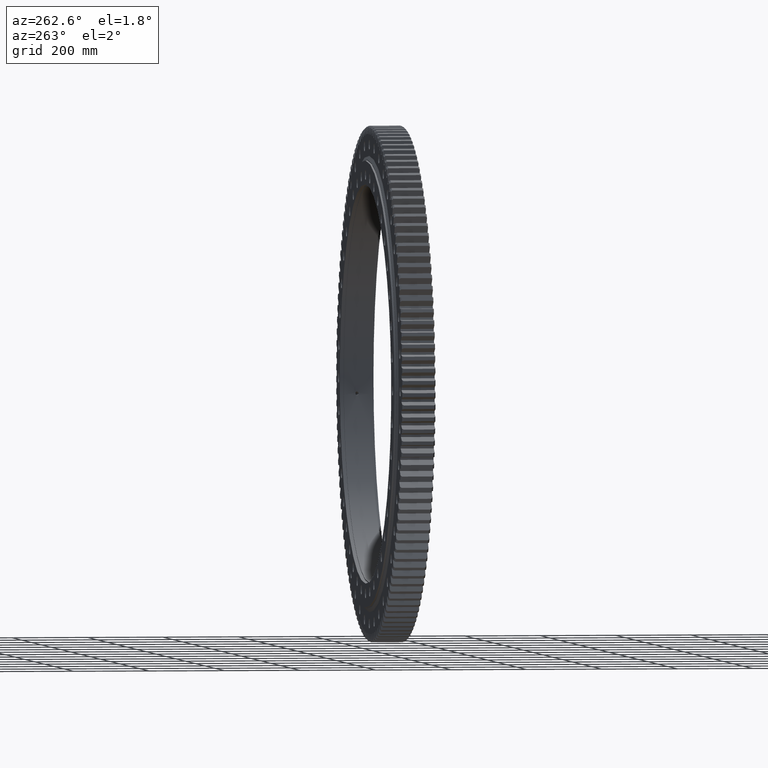
[diagram: clean part render]
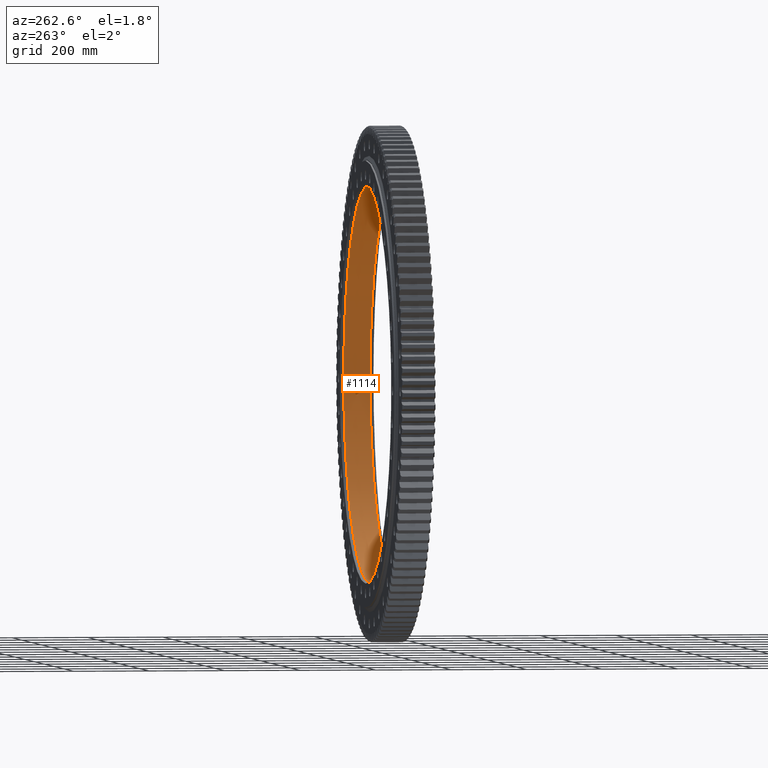
[diagram: same view with one face highlighted and labeled with its STEP entity id]
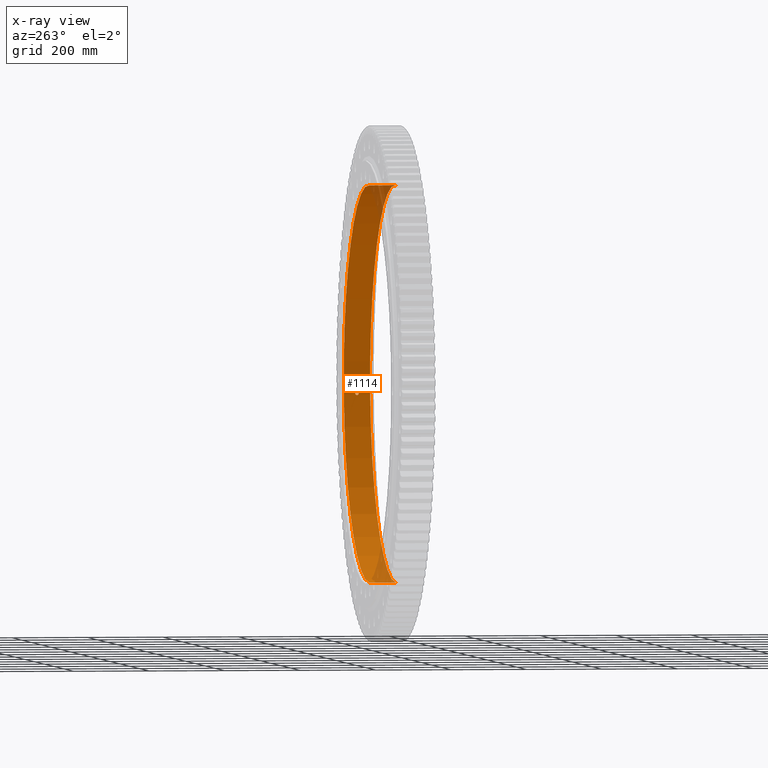
[diagram: x-ray of the same camera — body ghosted, the highlighted face saturated]
A machine part, auxiliary view. The second image highlights one B-rep face of the part: STEP entity #1114.
The next image is the same camera in x-ray: the body ghosted, the highlighted face saturated — about 7% of this face is hidden behind the body in this view.
In plain terms, the highlighted cylindrical surface (partial cylindrical patch) has radius 522.5 mm, axis along (-0, 1, -0).
Its self-contained STEP definition (entity closure, byte-faithful):
#107 = VECTOR ( 'NONE', #29542, 1000.000000000000000 ) ;
#181 = DIRECTION ( 'NONE',  ( 0.0000000000000000000, 2.656035944079321900E-017, 1.000000000000000000 ) ) ;
#217 = CARTESIAN_POINT ( 'NONE',  ( 42.44189346128200000, 4.269501406712616500, 520.7734718713392100 ) ) ;
#580 = CARTESIAN_POINT ( 'NONE',  ( 520.5169223319886700, 7.982458896630488700E-009, -45.47948511179952600 ) ) ;
#929 = CARTESIAN_POINT ( 'NONE',  ( 45.25030807638969300, 1.450671737367961600, 520.5369077978168700 ) ) ;
#1114 = ADVANCED_FACE ( 'NONE', ( #35366, #6643, #34499 ), #33600, .F. ) ;
#1314 = CARTESIAN_POINT ( 'NONE',  ( 521.0014333689829300, -4.268830166289387900, -39.54529593804283400 ) ) ;
#1425 = CARTESIAN_POINT ( 'NONE',  ( 520.5967422455602200, -2.750358737038866700, -44.55680646927094600 ) ) ;
#1562 = VECTOR ( 'NONE', #14069, 1000.000000000000000 ) ;
#1666 = CARTESIAN_POINT ( 'NONE',  ( 45.47948511179770700, 0.2973269559830143400, 520.5169223319888900 ) ) ;
#1672 = CARTESIAN_POINT ( 'NONE',  ( 36.65036934035285300, -1.165413915667370600, 521.2130118627661700 ) ) ;
#1786 = CARTESIAN_POINT ( 'NONE',  ( 40.69532020410309800, -4.499748642551631800, 520.9128803760140700 ) ) ;
#1895 = CARTESIAN_POINT ( 'NONE',  ( 45.24845448250045600, -1.455748788596478600, 520.5370688136986200 ) ) ;
#2126 = CARTESIAN_POINT ( 'NONE',  ( 521.2230541935392700, 0.2936963170855722000, -36.50722910820135100 ) ) ;
#2321 = EDGE_CURVE ( 'NONE', #15021, #34153, #30546, .T. ) ;
#2519 = CARTESIAN_POINT ( 'NONE',  ( 0.0000000000000000000, 34.99999999999993600, 522.5000000000000000 ) ) ;
#2740 = CARTESIAN_POINT ( 'NONE',  ( 0.0000000000000000000, -35.00000000000004300, 522.5000000000000000 ) ) ;
#2882 = CARTESIAN_POINT ( 'NONE',  ( 6.398779525544920300E-014, 31.02910628019322900, -522.5000000000000000 ) ) ;
#2951 = CARTESIAN_POINT ( 'NONE',  ( 521.2129448723102300, 1.168562155700870300, -36.65132200568330500 ) ) ;
#3214 = CARTESIAN_POINT ( 'NONE',  ( 0.0000000000000000000, 34.99999999999993600, -1.800656362882646300E-015 ) ) ;
#3346 = CARTESIAN_POINT ( 'NONE',  ( 520.5683338920409800, 2.254170811191635900, -44.88748624617805700 ) ) ;
#3719 = CARTESIAN_POINT ( 'NONE',  ( 42.98165462433679100, 4.045121518116488300, 520.7292009204608100 ) ) ;
#3977 = CARTESIAN_POINT ( 'NONE',  ( 521.2210677606560700, -0.5854536415347041400, -36.53562412607830400 ) ) ;
#4010 = CARTESIAN_POINT ( 'NONE',  ( 40.40665138700662600, 4.470844854348500900, 520.9353470503792800 ) ) ;
#4088 = CARTESIAN_POINT ( 'NONE',  ( 520.9355418010818500, -4.470445865567148400, -40.40413346531175900 ) ) ;
#4204 = CARTESIAN_POINT ( 'NONE',  ( 520.5564947746986500, -1.997037332466410800, -45.02441993064842100 ) ) ;
#4458 = CARTESIAN_POINT ( 'NONE',  ( 36.96013392669093600, -1.991446762146140000, 521.1911463723289400 ) ) ;
#4542 = ORIENTED_EDGE ( 'NONE', *, *, #18994, .T. ) ;
#4571 = CARTESIAN_POINT ( 'NONE',  ( 41.57958242286080300, -4.471227370604653500, 520.8430387172171500 ) ) ;
#4701 = CARTESIAN_POINT ( 'NONE',  ( 45.45042653223400500, -0.5914362353935031000, 520.5194637264954700 ) ) ;
#5035 = CARTESIAN_POINT ( 'NONE',  ( 521.0419248841641300, 4.045565010946058100, -39.00816230308646500 ) ) ;
#5207 = CARTESIAN_POINT ( 'NONE',  ( 6.398779525544920300E-014, 34.99999999999993600, -522.5000000000000000 ) ) ;
#5698 = AXIS2_PLACEMENT_3D ( 'NONE', #9954, #34322, #181 ) ;
#5816 = CARTESIAN_POINT ( 'NONE',  ( 39.00816230308462500, 4.045565010946058100, 521.0419248841642500 ) ) ;
#6250 = CARTESIAN_POINT ( 'NONE',  ( 520.6475919262203400, 3.390113386120980500, -43.95882320256661300 ) ) ;
#6452 = B_SPLINE_CURVE_WITH_KNOTS ( 'NONE', 3,
 ( #580, #25637, #17427, #8647, #17697, #11367, #3346, #6634, #20511, #6250, #20141, #14431, #15643, #17353, #22305, #26229, #23302, #6986, #26943, #29616, #11594, #5035, #30076, #8169, #9553, #14258, #10988, #7679, #27761, #33575, #2951, #10869, #2126, #28375 ),
 .UNSPECIFIED., .F., .F.,
 ( 4, 2, 2, 2, 2, 2, 2, 2, 2, 2, 2, 2, 2, 2, 2, 2, 4 ),
 ( 3.728237875450148900E-018, 0.0008793201707925477000, 0.001758640341585091700, 0.002637960512377635900, 0.003517280683170179900, 0.004396600853962724000, 0.005275921024755267500, 0.006155241195547811100, 0.007034561366340355600, 0.007913881537132900000, 0.008793201707925444400, 0.009672521878717987200, 0.01055184204951053200, 0.01143116222030307600, 0.01231048239109561900, 0.01318980256188816300, 0.01406912273268070800 ),
 .UNSPECIFIED. ) ;
#6510 = CARTESIAN_POINT ( 'NONE',  ( 521.2230541935392700, -0.2936300045140719000, -36.50722910820135100 ) ) ;
#6634 = CARTESIAN_POINT ( 'NONE',  ( 520.5962930938819700, 2.743369090361458700, -44.56204988042131300 ) ) ;
#6643 = FACE_BOUND ( 'NONE', #20238, .T. ) ;
#6735 = CARTESIAN_POINT ( 'NONE',  ( 521.2069516081426200, -1.449885485798991300, -36.73657784999321100 ) ) ;
#6859 = CARTESIAN_POINT ( 'NONE',  ( 520.8663277619912200, -4.500248152740598900, -41.28688207999822200 ) ) ;
#6984 = CARTESIAN_POINT ( 'NONE',  ( 520.5295802677922000, -1.173646548506634100, -45.33441801012203600 ) ) ;
#6986 = CARTESIAN_POINT ( 'NONE',  ( 520.9122109962196400, 4.500103750323881400, -40.70386445916337000 ) ) ;
#7064 = EDGE_CURVE ( 'NONE', #21192, #29593, #23708, .T. ) ;
#7221 = CARTESIAN_POINT ( 'NONE',  ( 37.42718471580959500, -2.745437740084375000, 521.1578291912397800 ) ) ;
#7350 = CARTESIAN_POINT ( 'NONE',  ( 42.43695594754823500, -4.271335784517484400, 520.7738753571800300 ) ) ;
#7426 = CARTESIAN_POINT ( 'NONE',  ( 38.03226902857244300, 3.392750171269697000, 521.1140380510220200 ) ) ;
#7430 = EDGE_LOOP ( 'NONE', ( #14682, #4542 ) ) ;
#7467 = CARTESIAN_POINT ( 'NONE',  ( 45.47948511179769300, 7.982460993226838000E-009, 520.5169223319887800 ) ) ;
#7679 = CARTESIAN_POINT ( 'NONE',  ( 521.1810810616998400, 2.257525261012216500, -37.10198511371228800 ) ) ;
#8169 = CARTESIAN_POINT ( 'NONE',  ( 521.0974586145877100, 3.578755136296426300, -38.25896087370706800 ) ) ;
#8541 = VERTEX_POINT ( 'NONE', #5207 ) ;
#8647 = CARTESIAN_POINT ( 'NONE',  ( 520.5293971237024400, 1.164867514309323200, -45.33651947220699400 ) ) ;
#8792 = DIRECTION ( 'NONE',  ( 0.0000000000000000000, 0.0000000000000000000, 1.000000000000000000 ) ) ;
#9066 = CARTESIAN_POINT ( 'NONE',  ( 43.24273119766579800, 3.905344831416399200, 520.7075731305378700 ) ) ;
#9150 = CARTESIAN_POINT ( 'NONE',  ( 36.96150652220680400, 1.994554134339261400, 521.1910492257030700 ) ) ;
#9548 = CARTESIAN_POINT ( 'NONE',  ( 521.1813023166428100, -2.252554415507580700, -37.09888406145111600 ) ) ;
#9553 = CARTESIAN_POINT ( 'NONE',  ( 521.1140380510217900, 3.392750171269697900, -38.03226902857427700 ) ) ;
#9669 = CARTESIAN_POINT ( 'NONE',  ( 520.7969663623948700, -4.357378976210391400, -42.15272805371748200 ) ) ;
#9778 = CARTESIAN_POINT ( 'NONE',  ( 520.5169223319887800, -0.2972598238607369600, -45.47948511179951200 ) ) ;
#9954 = CARTESIAN_POINT ( 'NONE',  ( 0.0000000000000000000, 31.02910628019324300, -1.692367527159823000E-015 ) ) ;
#10033 = ORIENTED_EDGE ( 'NONE', *, *, #31015, .T. ) ;
#10052 = CARTESIAN_POINT ( 'NONE',  ( 38.02645568771907100, -3.387315542913415600, 521.1144611673427100 ) ) ;
#10149 = CARTESIAN_POINT ( 'NONE',  ( 44.56204988041948700, 2.743369090361455600, 520.5962930938823100 ) ) ;
#10152 = CARTESIAN_POINT ( 'NONE',  ( 43.23866525860639600, -3.907536526290679800, 520.7079100526788100 ) ) ;
#10754 = EDGE_CURVE ( 'NONE', #30493, #28166, #6452, .T. ) ;
#10822 = CARTESIAN_POINT ( 'NONE',  ( 43.95882320256480800, 3.390113386120976500, 520.6475919262203400 ) ) ;
#10869 = CARTESIAN_POINT ( 'NONE',  ( 521.2210002377947800, 0.5919615105904813000, -36.53658739322546000 ) ) ;
#10988 = CARTESIAN_POINT ( 'NONE',  ( 521.1578365274966700, 2.744955736329135500, -37.42707552025913000 ) ) ;
#11199 = AXIS2_PLACEMENT_3D ( 'NONE', #25197, #17756, #11560 ) ;
#11208 = AXIS2_PLACEMENT_3D ( 'NONE', #3214, #14900, #8792 ) ;
#11252 = B_SPLINE_CURVE_WITH_KNOTS ( 'NONE', 3,
 ( #34487, #6510, #3977, #23433, #6735, #26228, #9548, #29006, #12361, #31797, #15150, #34584, #17944, #1314, #20732, #4088, #23568, #6859, #26333, #9669, #29144, #12473, #31902, #15282, #34719, #18055, #1425, #20866, #4204, #23674, #6984, #26463, #9778, #29257 ),
 .UNSPECIFIED., .F., .F.,
 ( 4, 2, 2, 2, 2, 2, 2, 2, 2, 2, 2, 2, 2, 2, 2, 2, 4 ),
 ( 0.01406912273268070800, 0.01494824441291817800, 0.01582736609315564500, 0.01670648777339311600, 0.01758560945363058700, 0.01846473113386805400, 0.01934385281410552800, 0.02022297449434299500, 0.02110209617458046500, 0.02198121785481793600, 0.02286033953505540300, 0.02373946121529287400, 0.02461858289553034400, 0.02549770457576781100, 0.02637682625600527900, 0.02725594793624274900, 0.02813506961648021600 ),
 .UNSPECIFIED. ) ;
#11367 = CARTESIAN_POINT ( 'NONE',  ( 520.5564251717156600, 1.995681479349314100, -45.02522596462204500 ) ) ;
#11560 = DIRECTION ( 'NONE',  ( 0.0000000000000000000, 2.656035944079321900E-017, 1.000000000000000000 ) ) ;
#11594 = CARTESIAN_POINT ( 'NONE',  ( 521.0009654584851000, 4.270948587163580600, -39.55146273635573800 ) ) ;
#11995 = CARTESIAN_POINT ( 'NONE',  ( 44.88748624617623800, 2.254170811191633600, 520.5683338920413200 ) ) ;
#12361 = CARTESIAN_POINT ( 'NONE',  ( 521.1444696501979500, -2.972154230457295700, -37.61295950751544100 ) ) ;
#12473 = CARTESIAN_POINT ( 'NONE',  ( 520.7292588011807800, -4.045623300547013000, -42.98096686909710200 ) ) ;
#12572 = CARTESIAN_POINT ( 'NONE',  ( 37.61317475582430300, 2.972766753993241200, 521.1444552387481500 ) ) ;
#12598 = EDGE_CURVE ( 'NONE', #8541, #34153, #14708, .T. ) ;
#12730 = CARTESIAN_POINT ( 'NONE',  ( 36.50722910819952500, -0.2936300045140723400, 521.2230541935393800 ) ) ;
#12840 = CARTESIAN_POINT ( 'NONE',  ( 38.74513019763642800, -3.904565419333112100, 521.0615364433856500 ) ) ;
#12963 = CARTESIAN_POINT ( 'NONE',  ( 43.95691874128547000, -3.391801968467732300, 520.6477528050151000 ) ) ;
#13089 = CARTESIAN_POINT ( 'NONE',  ( 36.65132200568147900, 1.168562155700870100, 521.2129448723103500 ) ) ;
#13602 = ORIENTED_EDGE ( 'NONE', *, *, #10754, .T. ) ;
#14069 = DIRECTION ( 'NONE',  ( -0.0000000000000000000, 1.000000000000000000, -2.727064569436389700E-017 ) ) ;
#14258 = CARTESIAN_POINT ( 'NONE',  ( 521.1444552387477000, 2.972766753993242500, -37.61317475582611500 ) ) ;
#14431 = CARTESIAN_POINT ( 'NONE',  ( 520.7075731305378700, 3.905344831416399200, -43.24273119766761700 ) ) ;
#14542 = CARTESIAN_POINT ( 'NONE',  ( 45.45041687211387700, 0.5896845411252149600, 520.5194644525504400 ) ) ;
#14682 = ORIENTED_EDGE ( 'NONE', *, *, #7064, .T. ) ;
#14708 = CIRCLE ( 'NONE', #11208, 522.5000000000000000 ) ;
#14900 = DIRECTION ( 'NONE',  ( 0.0000000000000000000, -1.000000000000000000, 0.0000000000000000000 ) ) ;
#14920 = CARTESIAN_POINT ( 'NONE',  ( 38.25896087370523400, 3.578755136296423600, 521.0974586145879400 ) ) ;
#15021 = VERTEX_POINT ( 'NONE', #2740 ) ;
#15150 = CARTESIAN_POINT ( 'NONE',  ( 521.0975975296682900, -3.577391925666828100, -38.25707416388863200 ) ) ;
#15161 = CARTESIAN_POINT ( 'NONE',  ( 36.50722910819951700, 7.982461642902911800E-009, 521.2230541935395000 ) ) ;
#15282 = CARTESIAN_POINT ( 'NONE',  ( 520.6672208942344500, -3.581692240166549200, -43.72590594886288100 ) ) ;
#15463 = CARTESIAN_POINT ( 'NONE',  ( 39.83118006561283400, 4.355941762590147100, 520.9796640727839800 ) ) ;
#15643 = CARTESIAN_POINT ( 'NONE',  ( 520.7292009204607000, 4.045121518116488300, -42.98165462433862400 ) ) ;
#15657 = CARTESIAN_POINT ( 'NONE',  ( 39.54529593804102200, -4.268830166289387100, 521.0014333689830400 ) ) ;
#15761 = CARTESIAN_POINT ( 'NONE',  ( 44.55680646926910500, -2.750358737038864900, 520.5967422455603400 ) ) ;
#15829 = CARTESIAN_POINT ( 'NONE',  ( 45.47948511179769300, 7.982460993226838000E-009, 520.5169223319887800 ) ) ;
#16257 = EDGE_CURVE ( 'NONE', #15021, #26069, #23874, .T. ) ;
#17217 = LINE ( 'NONE', #2882, #1562 ) ;
#17228 = ORIENTED_EDGE ( 'NONE', *, *, #12598, .F. ) ;
#17284 = EDGE_LOOP ( 'NONE', ( #26492, #25569, #29918, #17228 ) ) ;
#17353 = CARTESIAN_POINT ( 'NONE',  ( 520.7734718713393200, 4.269501406712617400, -42.44189346128382600 ) ) ;
#17427 = CARTESIAN_POINT ( 'NONE',  ( 520.5194644525503200, 0.5896845411252184000, -45.45041687211571000 ) ) ;
#17697 = CARTESIAN_POINT ( 'NONE',  ( 520.5369077978167500, 1.450671737367963600, -45.25030807639151900 ) ) ;
#17756 = DIRECTION ( 'NONE',  ( -0.0000000000000000000, 1.000000000000000000, -2.727064569436389700E-017 ) ) ;
#17833 = EDGE_CURVE ( 'NONE', #26069, #8541, #17217, .T. ) ;
#17944 = CARTESIAN_POINT ( 'NONE',  ( 521.0423288097167600, -4.042876200229306600, -39.00276390089474200 ) ) ;
#18055 = CARTESIAN_POINT ( 'NONE',  ( 520.6126141455597500, -2.976678123065436200, -44.37115277594865900 ) ) ;
#18327 = CARTESIAN_POINT ( 'NONE',  ( 36.53562412607647800, -0.5854536415347065800, 521.2210677606563000 ) ) ;
#18425 = CARTESIAN_POINT ( 'NONE',  ( 40.40413346530994700, -4.470445865567147500, 520.9355418010817400 ) ) ;
#18545 = CARTESIAN_POINT ( 'NONE',  ( 45.02441993064658700, -1.997037332466408400, 520.5564947746986500 ) ) ;
#18994 = EDGE_CURVE ( 'NONE', #29593, #21192, #31745, .T. ) ;
#19412 = CARTESIAN_POINT ( 'NONE',  ( 36.53658739322362000, 0.5919615105904805200, 521.2210002377949000 ) ) ;
#20141 = CARTESIAN_POINT ( 'NONE',  ( 520.6666234639390000, 3.576389863555925700, -43.73302788041178200 ) ) ;
#20238 = EDGE_LOOP ( 'NONE', ( #13602, #10033 ) ) ;
#20345 = CARTESIAN_POINT ( 'NONE',  ( 45.02522596462021900, 1.995681479349311200, 520.5564251717157700 ) ) ;
#20511 = CARTESIAN_POINT ( 'NONE',  ( 520.6124886286864900, 2.974981557475649300, -44.37262444089137100 ) ) ;
#20732 = CARTESIAN_POINT ( 'NONE',  ( 520.9797051835530500, -4.355728621484209000, -39.83063518860094400 ) ) ;
#20866 = CARTESIAN_POINT ( 'NONE',  ( 520.5685940554086500, -2.259570265699943500, -44.88447306814720900 ) ) ;
#20991 = CARTESIAN_POINT ( 'NONE',  ( 43.73302788040996300, 3.576389863555923000, 520.6666234639392300 ) ) ;
#21102 = CARTESIAN_POINT ( 'NONE',  ( 36.73657784999139200, -1.449885485798995800, 521.2069516081426200 ) ) ;
#21192 = VERTEX_POINT ( 'NONE', #15829 ) ;
#21232 = CARTESIAN_POINT ( 'NONE',  ( 41.28688207999639600, -4.500248152740597100, 520.8663277619913300 ) ) ;
#21362 = CARTESIAN_POINT ( 'NONE',  ( 45.33441801012021000, -1.173646548506633900, 520.5295802677923100 ) ) ;
#22305 = CARTESIAN_POINT ( 'NONE',  ( 520.7964416032567700, 4.355842742466290200, -42.15923132697451300 ) ) ;
#22634 = CARTESIAN_POINT ( 'NONE',  ( 40.70386445916154400, 4.500103750323881400, 520.9122109962199800 ) ) ;
#23302 = CARTESIAN_POINT ( 'NONE',  ( 520.8661524830341700, 4.499895700381830300, -41.28907051994146100 ) ) ;
#23433 = CARTESIAN_POINT ( 'NONE',  ( 521.2130118627662800, -1.165413915667368000, -36.65036934035469300 ) ) ;
#23566 = CARTESIAN_POINT ( 'NONE',  ( 38.74533045590932500, 3.904600838382395800, 521.0615211561685100 ) ) ;
#23568 = CARTESIAN_POINT ( 'NONE',  ( 520.9128803760136200, -4.499748642551631800, -40.69532020410492400 ) ) ;
#23674 = CARTESIAN_POINT ( 'NONE',  ( 520.5370688136984000, -1.455748788596481000, -45.24845448250231100 ) ) ;
#23708 = B_SPLINE_CURVE_WITH_KNOTS ( 'NONE', 3,
 ( #24613, #1666, #14542, #30803, #929, #20345, #11995, #10149, #27489, #10822, #20991, #9066, #3719, #217, #31828, #32456, #28967, #22634, #4010, #15463, #32103, #5816, #23566, #14920, #7426, #12572, #32498, #25302, #9150, #35295, #13089, #19412, #36093, #15161 ),
 .UNSPECIFIED., .F., .F.,
 ( 4, 2, 2, 2, 2, 2, 2, 2, 2, 2, 2, 2, 2, 2, 2, 2, 4 ),
 ( 5.974346402326065600E-019, 0.0008793201707925457500, 0.001758640341585090800, 0.002637960512377635100, 0.003517280683170179900, 0.004396600853962724800, 0.005275921024755269300, 0.006155241195547815500, 0.007034561366340359900, 0.007913881537132903500, 0.008793201707925447900, 0.009672521878717994100, 0.01055184204951053900, 0.01143116222030308500, 0.01231048239109562900, 0.01318980256188817500, 0.01406912273268071800 ),
 .UNSPECIFIED. ) ;
#23874 = CIRCLE ( 'NONE', #11199, 522.5000000000000000 ) ;
#23935 = CARTESIAN_POINT ( 'NONE',  ( 37.09888406144929700, -2.252554415507583800, 521.1813023166430400 ) ) ;
#24051 = CARTESIAN_POINT ( 'NONE',  ( 42.15272805371564900, -4.357378976210391400, 520.7969663623948700 ) ) ;
#24160 = CARTESIAN_POINT ( 'NONE',  ( 45.47948511179772200, -0.2972598238607389600, 520.5169223319891200 ) ) ;
#24613 = CARTESIAN_POINT ( 'NONE',  ( 45.47948511179769300, 7.982460993226838000E-009, 520.5169223319887800 ) ) ;
#24976 = CARTESIAN_POINT ( 'NONE',  ( 521.2230541935393800, 7.982461642902915100E-009, -36.50722910820135100 ) ) ;
#25197 = CARTESIAN_POINT ( 'NONE',  ( 0.0000000000000000000, -35.00000000000005700, 1.082888357228264900E-016 ) ) ;
#25302 = CARTESIAN_POINT ( 'NONE',  ( 37.10198511371045500, 2.257525261012221800, 521.1810810616998400 ) ) ;
#25569 = ORIENTED_EDGE ( 'NONE', *, *, #16257, .F. ) ;
#25637 = CARTESIAN_POINT ( 'NONE',  ( 520.5169223319888900, 0.2973269559830135600, -45.47948511179954100 ) ) ;
#26069 = VERTEX_POINT ( 'NONE', #32638 ) ;
#26228 = CARTESIAN_POINT ( 'NONE',  ( 521.1911463723287200, -1.991446762146136300, -36.96013392669276200 ) ) ;
#26229 = CARTESIAN_POINT ( 'NONE',  ( 520.8429942596722000, 4.471354146412040500, -41.58015997221620800 ) ) ;
#26333 = CARTESIAN_POINT ( 'NONE',  ( 520.8430387172170400, -4.471227370604653500, -41.57958242286263600 ) ) ;
#26463 = CARTESIAN_POINT ( 'NONE',  ( 520.5194637264952500, -0.5914362353935023200, -45.45042653223581700 ) ) ;
#26492 = ORIENTED_EDGE ( 'NONE', *, *, #17833, .F. ) ;
#26714 = CARTESIAN_POINT ( 'NONE',  ( 37.61295950751360800, -2.972154230457297000, 521.1444696501980600 ) ) ;
#26831 = CARTESIAN_POINT ( 'NONE',  ( 42.98096686909528300, -4.045623300547009500, 520.7292588011812300 ) ) ;
#26943 = CARTESIAN_POINT ( 'NONE',  ( 520.9353470503791600, 4.470844854348500000, -40.40665138700844500 ) ) ;
#27489 = CARTESIAN_POINT ( 'NONE',  ( 44.37262444088956000, 2.974981557475645700, 520.6124886286867200 ) ) ;
#27761 = CARTESIAN_POINT ( 'NONE',  ( 521.1910492257029500, 1.994554134339263200, -36.96150652220863700 ) ) ;
#28166 = VERTEX_POINT ( 'NONE', #24976 ) ;
#28375 = CARTESIAN_POINT ( 'NONE',  ( 521.2230541935393800, 7.982461642902915100E-009, -36.50722910820135100 ) ) ;
#28967 = CARTESIAN_POINT ( 'NONE',  ( 41.28907051993962800, 4.499895700381828500, 520.8661524830344000 ) ) ;
#29006 = CARTESIAN_POINT ( 'NONE',  ( 521.1578291912397800, -2.745437740084371900, -37.42718471581144300 ) ) ;
#29144 = CARTESIAN_POINT ( 'NONE',  ( 520.7738753571799200, -4.271335784517489700, -42.43695594755007500 ) ) ;
#29257 = CARTESIAN_POINT ( 'NONE',  ( 520.5169223319886700, 7.982458896630488700E-009, -45.47948511179952600 ) ) ;
#29500 = CARTESIAN_POINT ( 'NONE',  ( 38.25707416388680600, -3.577391925666830700, 521.0975975296685200 ) ) ;
#29542 = DIRECTION ( 'NONE',  ( -0.0000000000000000000, 1.000000000000000000, -2.727064569436389700E-017 ) ) ;
#29593 = VERTEX_POINT ( 'NONE', #33108 ) ;
#29616 = CARTESIAN_POINT ( 'NONE',  ( 520.9796640727838600, 4.355941762590146200, -39.83118006561465300 ) ) ;
#29628 = CARTESIAN_POINT ( 'NONE',  ( 43.72590594886106900, -3.581692240166547900, 520.6672208942346700 ) ) ;
#29918 = ORIENTED_EDGE ( 'NONE', *, *, #2321, .T. ) ;
#30076 = CARTESIAN_POINT ( 'NONE',  ( 521.0615211561682800, 3.904600838382398000, -38.74533045591113700 ) ) ;
#30493 = VERTEX_POINT ( 'NONE', #34878 ) ;
#30546 = LINE ( 'NONE', #35230, #107 ) ;
#30803 = CARTESIAN_POINT ( 'NONE',  ( 45.33651947220514700, 1.164867514309320300, 520.5293971237025500 ) ) ;
#31015 = EDGE_CURVE ( 'NONE', #28166, #30493, #11252, .T. ) ;
#31745 = B_SPLINE_CURVE_WITH_KNOTS ( 'NONE', 3,
 ( #32157, #12730, #18327, #1672, #21102, #4458, #23935, #7221, #26714, #10052, #29500, #12840, #32276, #15657, #35086, #18425, #1786, #21232, #4571, #24051, #7350, #26831, #10152, #29628, #12963, #32379, #15761, #35225, #18545, #1895, #21362, #4701, #24160, #7467 ),
 .UNSPECIFIED., .F., .F.,
 ( 4, 2, 2, 2, 2, 2, 2, 2, 2, 2, 2, 2, 2, 2, 2, 2, 4 ),
 ( 0.01406912273268071800, 0.01494824441291818900, 0.01582736609315565900, 0.01670648777339313000, 0.01758560945363060000, 0.01846473113386807100, 0.01934385281410554200, 0.02022297449434301200, 0.02110209617458048300, 0.02198121785481795300, 0.02286033953505542400, 0.02373946121529289100, 0.02461858289553036200, 0.02549770457576783200, 0.02637682625600529900, 0.02725594793624277300, 0.02813506961648024400 ),
 .UNSPECIFIED. ) ;
#31797 = CARTESIAN_POINT ( 'NONE',  ( 521.1144611673424800, -3.387315542913413900, -38.02645568772090500 ) ) ;
#31828 = CARTESIAN_POINT ( 'NONE',  ( 42.15923132697268700, 4.355842742466287600, 520.7964416032569900 ) ) ;
#31902 = CARTESIAN_POINT ( 'NONE',  ( 520.7079100526788100, -3.907536526290680700, -43.23866525860821500 ) ) ;
#32103 = CARTESIAN_POINT ( 'NONE',  ( 39.55146273635391200, 4.270948587163581500, 521.0009654584851000 ) ) ;
#32157 = CARTESIAN_POINT ( 'NONE',  ( 36.50722910819951700, 7.982461642902911800E-009, 521.2230541935395000 ) ) ;
#32276 = CARTESIAN_POINT ( 'NONE',  ( 39.00276390089292300, -4.042876200229308400, 521.0423288097169900 ) ) ;
#32379 = CARTESIAN_POINT ( 'NONE',  ( 44.37115277594682500, -2.976678123065429100, 520.6126141455599700 ) ) ;
#32456 = CARTESIAN_POINT ( 'NONE',  ( 41.58015997221439600, 4.471354146412037900, 520.8429942596723100 ) ) ;
#32498 = CARTESIAN_POINT ( 'NONE',  ( 37.42707552025729700, 2.744955736329141200, 521.1578365274970100 ) ) ;
#32638 = CARTESIAN_POINT ( 'NONE',  ( 6.398779525544920300E-014, -35.00000000000007100, -522.5000000000000000 ) ) ;
#33108 = CARTESIAN_POINT ( 'NONE',  ( 36.50722910819951700, 7.982461642902911800E-009, 521.2230541935395000 ) ) ;
#33575 = CARTESIAN_POINT ( 'NONE',  ( 521.2069804173643200, 1.449118756769780300, -36.73617184184408300 ) ) ;
#33600 = CYLINDRICAL_SURFACE ( 'NONE', #5698, 522.5000000000000000 ) ;
#34153 = VERTEX_POINT ( 'NONE', #2519 ) ;
#34322 = DIRECTION ( 'NONE',  ( -0.0000000000000000000, 1.000000000000000000, -2.727064569436389700E-017 ) ) ;
#34487 = CARTESIAN_POINT ( 'NONE',  ( 521.2230541935393800, 7.982461642902915100E-009, -36.50722910820135100 ) ) ;
#34499 = FACE_BOUND ( 'NONE', #7430, .T. ) ;
#34584 = CARTESIAN_POINT ( 'NONE',  ( 521.0615364433855300, -3.904565419333109000, -38.74513019763826100 ) ) ;
#34719 = CARTESIAN_POINT ( 'NONE',  ( 520.6477528050152200, -3.391801968467740300, -43.95691874128729600 ) ) ;
#34878 = CARTESIAN_POINT ( 'NONE',  ( 520.5169223319886700, 7.982458896630488700E-009, -45.47948511179952600 ) ) ;
#35086 = CARTESIAN_POINT ( 'NONE',  ( 39.83063518859913200, -4.355728621484211700, 520.9797051835532800 ) ) ;
#35225 = CARTESIAN_POINT ( 'NONE',  ( 44.88447306814539000, -2.259570265699941700, 520.5685940554088800 ) ) ;
#35230 = CARTESIAN_POINT ( 'NONE',  ( 0.0000000000000000000, 31.02910628019325800, 522.5000000000000000 ) ) ;
#35295 = CARTESIAN_POINT ( 'NONE',  ( 36.73617184184224300, 1.449118756769777900, 521.2069804173644300 ) ) ;
#35366 = FACE_OUTER_BOUND ( 'NONE', #17284, .T. ) ;
#36093 = CARTESIAN_POINT ( 'NONE',  ( 36.50722910819951700, 0.2936963170855719800, 521.2230541935392700 ) ) ;